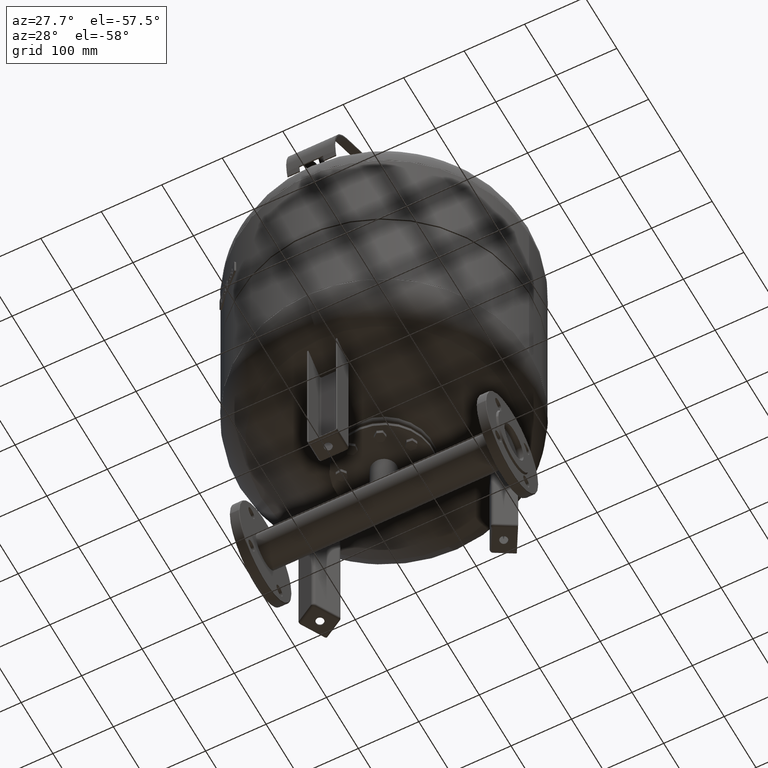
[diagram: clean part render]
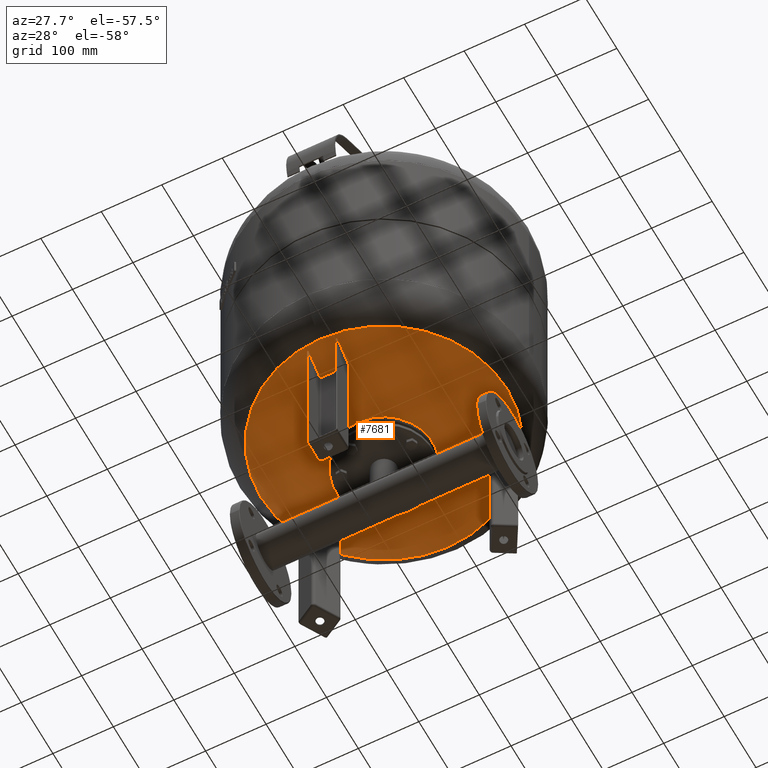
[diagram: same view with one face highlighted and labeled with its STEP entity id]
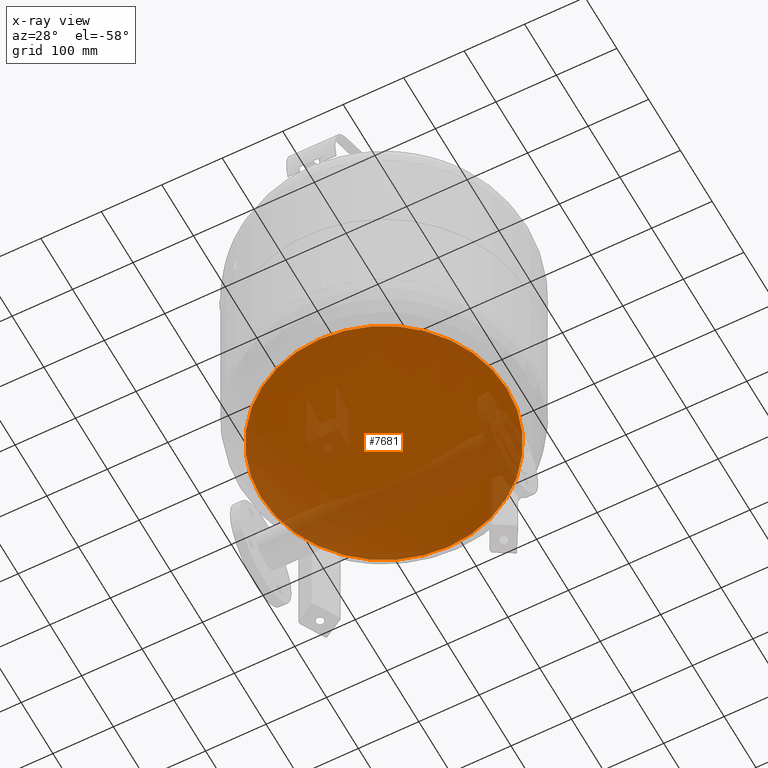
[diagram: x-ray of the same camera — body ghosted, the highlighted face saturated]
A machine part, auxiliary view. The second image highlights one B-rep face of the part: STEP entity #7681.
The next image is the same camera in x-ray: the body ghosted, the highlighted face saturated — about 24% of this face is hidden behind the body in this view.
In plain terms, the highlighted spherical surface has radius 354.5 mm.
Its self-contained STEP definition (entity closure, byte-faithful):
#7620=CARTESIAN_POINT('',(-4.111121E-015,-203.325884543761560,253.105725479139470));
#7621=VERTEX_POINT('',#7620);
#7637=CARTESIAN_POINT('',(-2.901054E-014,203.325884543761560,253.105725479139550));
#7638=VERTEX_POINT('',#7637);
#7646=CARTESIAN_POINT('',(-203.325884543761560,1.302307E-014,253.105725479139490));
#7647=VERTEX_POINT('',#7646);
#7648=CARTESIAN_POINT('',(4.711066E-015,1.302307E-014,253.105725479139520));
#7649=DIRECTION('',(0.0,0.0,1.0));
#7650=DIRECTION('',(-1.0,0.0,0.0));
#7651=AXIS2_PLACEMENT_3D('',#7648,#7649,#7650);
#7652=CIRCLE('',#7651,203.325884543761560);
#7653=EDGE_CURVE('',#7638,#7647,#7652,.T.);
#7655=CARTESIAN_POINT('',(4.711066E-015,1.302307E-014,253.105725479139520));
#7656=DIRECTION('',(0.0,0.0,1.0));
#7657=DIRECTION('',(-1.0,0.0,0.0));
#7658=AXIS2_PLACEMENT_3D('',#7655,#7656,#7657);
#7659=CIRCLE('',#7658,203.325884543761560);
#7660=EDGE_CURVE('',#7647,#7621,#7659,.T.);
#7665=CARTESIAN_POINT('',(-5.376199E-014,-4.032150E-014,543.500000000000000));
#7666=DIRECTION('',(0.0,-1.0,0.0));
#7667=DIRECTION('',(1.0,0.0,0.0));
#7668=AXIS2_PLACEMENT_3D('',#7665,#7666,#7667);
#7669=SPHERICAL_SURFACE('',#7668,354.500000000000170);
#7670=ORIENTED_EDGE('',*,*,#7660,.F.);
#7671=ORIENTED_EDGE('',*,*,#7653,.F.);
#7672=CARTESIAN_POINT('',(4.711066E-015,1.302307E-014,253.105725479139520));
#7673=DIRECTION('',(0.0,0.0,1.0));
#7674=DIRECTION('',(-1.0,0.0,0.0));
#7675=AXIS2_PLACEMENT_3D('',#7672,#7673,#7674);
#7676=CIRCLE('',#7675,203.325884543761560);
#7677=EDGE_CURVE('',#7621,#7638,#7676,.T.);
#7678=ORIENTED_EDGE('',*,*,#7677,.F.);
#7679=EDGE_LOOP('',(#7670,#7671,#7678));
#7680=FACE_OUTER_BOUND('',#7679,.T.);
#7681=ADVANCED_FACE('',(#7680),#7669,.T.);